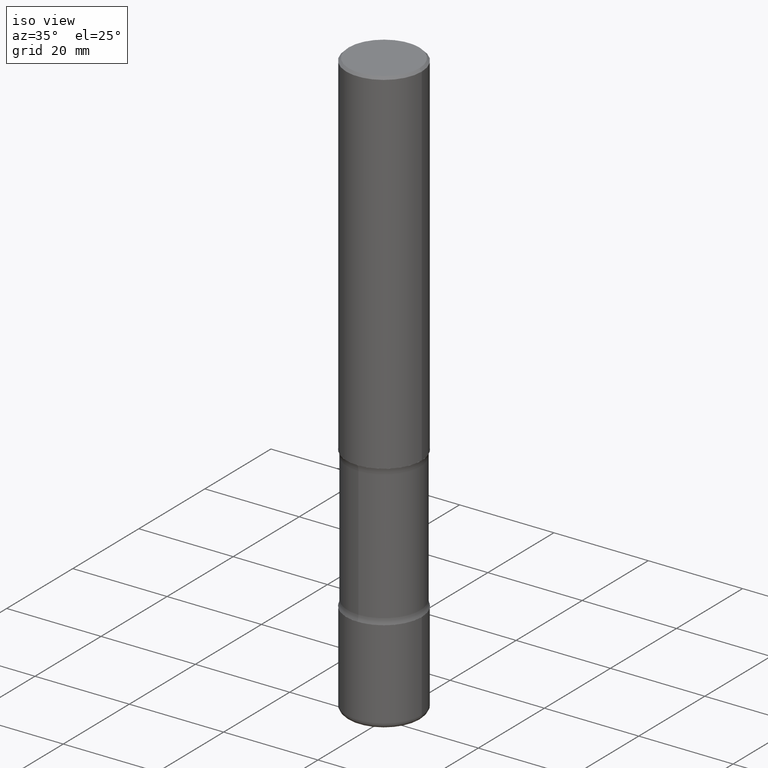
[diagram: clean part render]
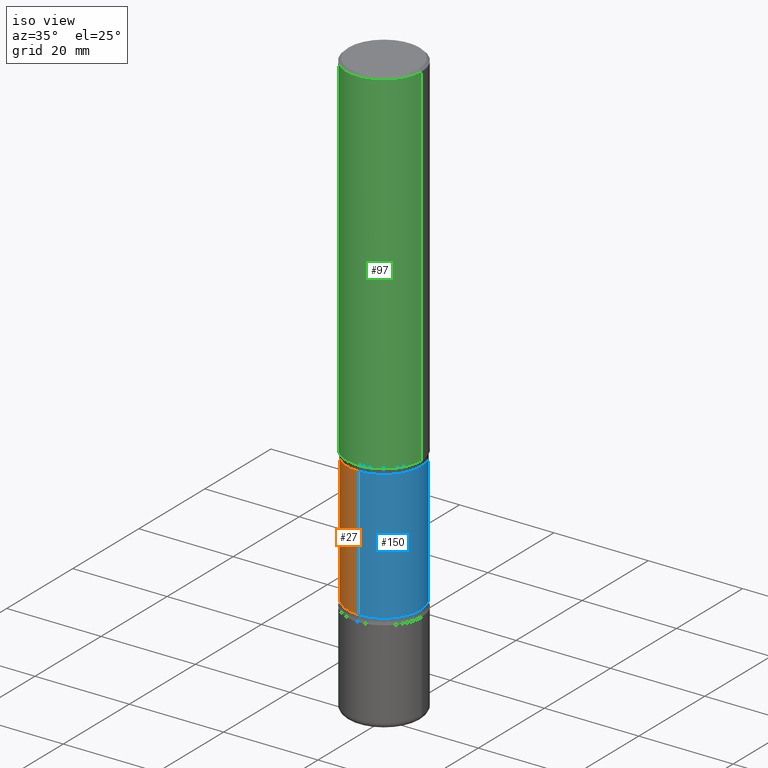
[diagram: same view with three faces highlighted in distinct colors, each labeled with its STEP entity id]
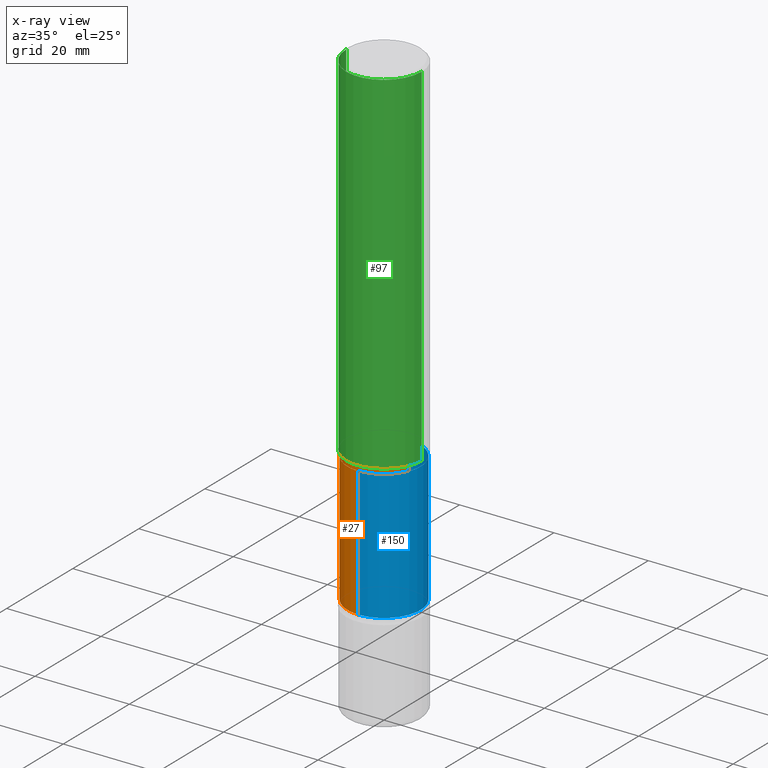
[diagram: x-ray of the same camera — body ghosted, the three highlighted faces saturated]
A machine part, iso view with three faces highlighted in distinct colors.
The next image is the same camera in x-ray (body ghosted, the three faces saturated) — at least one of them is partly hidden behind the body in this view.
Their STEP definitions:

[orange] entity #27 — the highlighted cylindrical surface (partial cylindrical patch) has radius 7.747 mm, axis along (0, -0, -1).
#4 = DIRECTION ( 'NONE',  ( 2.567425907890858451E-29, -3.316831827833398617E-15, -1.000000000000000000 ) ) ;
#12 = VECTOR ( 'NONE', #4, 39.37007874015748143 ) ;
#27 = ADVANCED_FACE ( 'NONE', ( #306 ), #174, .T. ) ;
#32 = VERTEX_POINT ( 'NONE', #482 ) ;
#38 = CIRCLE ( 'NONE', #392, 0.3049999999999999933 ) ;
#44 = CARTESIAN_POINT ( 'NONE',  ( 2.129803616694432752E-15, 0.3049999999999830069, -4.921299999999999564 ) ) ;
#96 = DIRECTION ( 'NONE',  ( 2.567425907890858451E-29, -3.316831827833398617E-15, -1.000000000000000000 ) ) ;
#111 = AXIS2_PLACEMENT_3D ( 'NONE', #540, #326, #152 ) ;
#123 = EDGE_LOOP ( 'NONE', ( #503, #546, #126, #293 ) ) ;
#126 = ORIENTED_EDGE ( 'NONE', *, *, #127, .T. ) ;
#127 = EDGE_CURVE ( 'NONE', #469, #246, #435, .T. ) ;
#133 = AXIS2_PLACEMENT_3D ( 'NONE', #391, #96, #526 ) ;
#145 = CARTESIAN_POINT ( 'NONE',  ( 2.129803616694383843E-15, 0.3049999999999893907, -3.001672256956274598 ) ) ;
#152 = DIRECTION ( 'NONE',  ( 6.982962677686265133E-15, 1.000000000000000000, -3.582751467100671728E-15 ) ) ;
#167 = EDGE_CURVE ( 'NONE', #32, #246, #38, .T. ) ;
#174 = CYLINDRICAL_SURFACE ( 'NONE', #133, 0.3050000000000000488 ) ;
#195 = CARTESIAN_POINT ( 'NONE',  ( -2.092451889320195532E-15, -0.3050000000000170908, -4.921299999999997787 ) ) ;
#246 = VERTEX_POINT ( 'NONE', #499 ) ;
#273 = DIRECTION ( 'NONE',  ( 6.982962677686266711E-15, 1.000000000000000000, -3.582751467100673306E-15 ) ) ;
#275 = CIRCLE ( 'NONE', #111, 0.3050000000000001044 ) ;
#293 = ORIENTED_EDGE ( 'NONE', *, *, #167, .F. ) ;
#306 = FACE_OUTER_BOUND ( 'NONE', #123, .T. ) ;
#318 = LINE ( 'NONE', #195, #345 ) ;
#319 = VERTEX_POINT ( 'NONE', #440 ) ;
#326 = DIRECTION ( 'NONE',  ( 2.567425907890858451E-29, -3.316831827833398617E-15, -1.000000000000000000 ) ) ;
#345 = VECTOR ( 'NONE', #411, 39.37007874015748143 ) ;
#391 = CARTESIAN_POINT ( 'NONE',  ( 1.213091465776199422E-28, -1.704510808787969270E-14, -4.921299999999998676 ) ) ;
#392 = AXIS2_PLACEMENT_3D ( 'NONE', #489, #530, #273 ) ;
#411 = DIRECTION ( 'NONE',  ( 2.567425907890858451E-29, -3.316831827833398617E-15, -1.000000000000000000 ) ) ;
#435 = LINE ( 'NONE', #44, #12 ) ;
#440 = CARTESIAN_POINT ( 'NONE',  ( -2.126582866859160770E-15, -0.3050000000000108180, -3.001672256956272378 ) ) ;
#456 = EDGE_CURVE ( 'NONE', #319, #469, #275, .T. ) ;
#469 = VERTEX_POINT ( 'NONE', #145 ) ;
#482 = CARTESIAN_POINT ( 'NONE',  ( -2.126582866859130004E-15, -0.3050000000000142597, -4.085027743043725401 ) ) ;
#489 = CARTESIAN_POINT ( 'NONE',  ( 9.983847599202101310E-29, -1.427133364927305841E-14, -4.085027743043726289 ) ) ;
#499 = CARTESIAN_POINT ( 'NONE',  ( 2.129803616694410664E-15, 0.3049999999999857270, -4.085027743043728066 ) ) ;
#503 = ORIENTED_EDGE ( 'NONE', *, *, #513, .F. ) ;
#513 = EDGE_CURVE ( 'NONE', #319, #32, #318, .T. ) ;
#526 = DIRECTION ( 'NONE',  ( 6.982962677686265133E-15, 1.000000000000000000, -3.582751467100672517E-15 ) ) ;
#530 = DIRECTION ( 'NONE',  ( 2.567425907890858451E-29, -3.316831827833398617E-15, -1.000000000000000000 ) ) ;
#540 = CARTESIAN_POINT ( 'NONE',  ( 7.202412656765479231E-29, -1.067802569216027239E-14, -3.001672256956273710 ) ) ;
#546 = ORIENTED_EDGE ( 'NONE', *, *, #456, .T. ) ;

[blue] entity #150 — the highlighted cylindrical surface (partial cylindrical patch) has radius 7.747 mm, axis along (0, -0, -1).
#4 = DIRECTION ( 'NONE',  ( 2.567425907890858451E-29, -3.316831827833398617E-15, -1.000000000000000000 ) ) ;
#7 = EDGE_CURVE ( 'NONE', #246, #32, #523, .T. ) ;
#10 = DIRECTION ( 'NONE',  ( 6.982962677686266711E-15, 1.000000000000000000, -3.582751467100673306E-15 ) ) ;
#12 = VECTOR ( 'NONE', #4, 39.37007874015748143 ) ;
#13 = CARTESIAN_POINT ( 'NONE',  ( 1.213091465776199422E-28, -1.704510808787969270E-14, -4.921299999999998676 ) ) ;
#31 = FACE_OUTER_BOUND ( 'NONE', #420, .T. ) ;
#32 = VERTEX_POINT ( 'NONE', #482 ) ;
#34 = DIRECTION ( 'NONE',  ( 6.982962677686265133E-15, 1.000000000000000000, -3.582751467100672517E-15 ) ) ;
#44 = CARTESIAN_POINT ( 'NONE',  ( 2.129803616694432752E-15, 0.3049999999999830069, -4.921299999999999564 ) ) ;
#46 = AXIS2_PLACEMENT_3D ( 'NONE', #197, #448, #102 ) ;
#48 = CARTESIAN_POINT ( 'NONE',  ( 9.983847599202101310E-29, -1.427133364927305841E-14, -4.085027743043726289 ) ) ;
#102 = DIRECTION ( 'NONE',  ( 6.982962677686265133E-15, 1.000000000000000000, -3.582751467100671728E-15 ) ) ;
#127 = EDGE_CURVE ( 'NONE', #469, #246, #435, .T. ) ;
#145 = CARTESIAN_POINT ( 'NONE',  ( 2.129803616694383843E-15, 0.3049999999999893907, -3.001672256956274598 ) ) ;
#150 = ADVANCED_FACE ( 'NONE', ( #31 ), #313, .T. ) ;
#151 = ORIENTED_EDGE ( 'NONE', *, *, #253, .T. ) ;
#195 = CARTESIAN_POINT ( 'NONE',  ( -2.092451889320195532E-15, -0.3050000000000170908, -4.921299999999997787 ) ) ;
#197 = CARTESIAN_POINT ( 'NONE',  ( 7.202412656765479231E-29, -1.067802569216027239E-14, -3.001672256956273710 ) ) ;
#217 = DIRECTION ( 'NONE',  ( 2.567425907890858451E-29, -3.316831827833398617E-15, -1.000000000000000000 ) ) ;
#246 = VERTEX_POINT ( 'NONE', #499 ) ;
#253 = EDGE_CURVE ( 'NONE', #469, #319, #400, .T. ) ;
#300 = ORIENTED_EDGE ( 'NONE', *, *, #127, .F. ) ;
#313 = CYLINDRICAL_SURFACE ( 'NONE', #325, 0.3050000000000000488 ) ;
#318 = LINE ( 'NONE', #195, #345 ) ;
#319 = VERTEX_POINT ( 'NONE', #440 ) ;
#325 = AXIS2_PLACEMENT_3D ( 'NONE', #13, #414, #34 ) ;
#345 = VECTOR ( 'NONE', #411, 39.37007874015748143 ) ;
#400 = CIRCLE ( 'NONE', #46, 0.3050000000000001044 ) ;
#407 = ORIENTED_EDGE ( 'NONE', *, *, #513, .T. ) ;
#411 = DIRECTION ( 'NONE',  ( 2.567425907890858451E-29, -3.316831827833398617E-15, -1.000000000000000000 ) ) ;
#414 = DIRECTION ( 'NONE',  ( 2.567425907890858451E-29, -3.316831827833398617E-15, -1.000000000000000000 ) ) ;
#420 = EDGE_LOOP ( 'NONE', ( #151, #407, #518, #300 ) ) ;
#435 = LINE ( 'NONE', #44, #12 ) ;
#440 = CARTESIAN_POINT ( 'NONE',  ( -2.126582866859160770E-15, -0.3050000000000108180, -3.001672256956272378 ) ) ;
#448 = DIRECTION ( 'NONE',  ( 2.567425907890858451E-29, -3.316831827833398617E-15, -1.000000000000000000 ) ) ;
#469 = VERTEX_POINT ( 'NONE', #145 ) ;
#482 = CARTESIAN_POINT ( 'NONE',  ( -2.126582866859130004E-15, -0.3050000000000142597, -4.085027743043725401 ) ) ;
#493 = AXIS2_PLACEMENT_3D ( 'NONE', #48, #217, #10 ) ;
#499 = CARTESIAN_POINT ( 'NONE',  ( 2.129803616694410664E-15, 0.3049999999999857270, -4.085027743043728066 ) ) ;
#513 = EDGE_CURVE ( 'NONE', #319, #32, #318, .T. ) ;
#518 = ORIENTED_EDGE ( 'NONE', *, *, #7, .F. ) ;
#523 = CIRCLE ( 'NONE', #493, 0.3049999999999999933 ) ;

[green] entity #97 — the highlighted cylindrical surface (partial cylindrical patch) has radius 7.9997 mm, axis along (-0, 0, 1).
#37 = ORIENTED_EDGE ( 'NONE', *, *, #308, .T. ) ;
#52 = DIRECTION ( 'NONE',  ( -2.445468806185136597E-29, 3.491481338843145583E-15, 1.000000000000000000 ) ) ;
#55 = CIRCLE ( 'NONE', #60, 0.3149500000000002298 ) ;
#60 = AXIS2_PLACEMENT_3D ( 'NONE', #447, #405, #186 ) ;
#70 = DIRECTION ( 'NONE',  ( -2.445468806185136877E-29, 3.491481338843145188E-15, 1.000000000000000000 ) ) ;
#73 = CARTESIAN_POINT ( 'NONE',  ( -0.3149500000000000077, 2.237854346276435590E-15, -1.549218606675782676E-29 ) ) ;
#77 = CARTESIAN_POINT ( 'NONE',  ( -0.3149499999999998967, 2.129454468560425784E-15, -0.02000000000000006981 ) ) ;
#84 = EDGE_CURVE ( 'NONE', #379, #109, #541, .T. ) ;
#92 = DIRECTION ( 'NONE',  ( -2.445468806185136597E-29, 3.491481338843145583E-15, 1.000000000000000000 ) ) ;
#97 = ADVANCED_FACE ( 'NONE', ( #140 ), #524, .T. ) ;
#109 = VERTEX_POINT ( 'NONE', #352 ) ;
#121 = VECTOR ( 'NONE', #207, 39.37007874015748143 ) ;
#130 = AXIS2_PLACEMENT_3D ( 'NONE', #303, #52, #264 ) ;
#140 = FACE_OUTER_BOUND ( 'NONE', #555, .T. ) ;
#163 = CARTESIAN_POINT ( 'NONE',  ( 0.3149500000000000077, -2.199284095337289871E-15, 1.535751875536930130E-29 ) ) ;
#186 = DIRECTION ( 'NONE',  ( 1.000000000000000000, -6.982962677686264344E-15, 0.000000000000000000 ) ) ;
#200 = ORIENTED_EDGE ( 'NONE', *, *, #255, .T. ) ;
#201 = VECTOR ( 'NONE', #70, 39.37007874015748143 ) ;
#203 = LINE ( 'NONE', #163, #121 ) ;
#207 = DIRECTION ( 'NONE',  ( -2.445468806185136877E-29, 3.491481338843145188E-15, 1.000000000000000000 ) ) ;
#208 = ORIENTED_EDGE ( 'NONE', *, *, #84, .F. ) ;
#255 = EDGE_CURVE ( 'NONE', #549, #109, #203, .T. ) ;
#258 = AXIS2_PLACEMENT_3D ( 'NONE', #259, #92, #442 ) ;
#259 = CARTESIAN_POINT ( 'NONE',  ( 4.890937612370289799E-31, -6.982962677686315028E-17, -0.02000000000000006981 ) ) ;
#264 = DIRECTION ( 'NONE',  ( 1.000000000000000000, -6.982962677686266711E-15, 4.876176775795936353E-29 ) ) ;
#303 = CARTESIAN_POINT ( 'NONE',  ( 0.000000000000000000, 0.000000000000000000, 0.000000000000000000 ) ) ;
#308 = EDGE_CURVE ( 'NONE', #373, #549, #55, .T. ) ;
#309 = ORIENTED_EDGE ( 'NONE', *, *, #363, .F. ) ;
#328 = CARTESIAN_POINT ( 'NONE',  ( -0.3149500000000002298, -2.951883515780010590E-15, -2.952799999999999869 ) ) ;
#352 = CARTESIAN_POINT ( 'NONE',  ( 0.3149499999999998967, -2.230543471175006266E-15, -0.02000000000000006981 ) ) ;
#363 = EDGE_CURVE ( 'NONE', #373, #379, #505, .T. ) ;
#373 = VERTEX_POINT ( 'NONE', #328 ) ;
#379 = VERTEX_POINT ( 'NONE', #77 ) ;
#405 = DIRECTION ( 'NONE',  ( -2.445468806185136597E-29, 3.491481338843145583E-15, 1.000000000000000000 ) ) ;
#442 = DIRECTION ( 'NONE',  ( 1.000000000000000000, -6.982962677686265922E-15, 0.000000000000000000 ) ) ;
#447 = CARTESIAN_POINT ( 'NONE',  ( 7.220980290903470182E-29, -1.030964609733603853E-14, -2.952799999999999869 ) ) ;
#505 = LINE ( 'NONE', #73, #201 ) ;
#524 = CYLINDRICAL_SURFACE ( 'NONE', #130, 0.3149500000000000077 ) ;
#533 = CARTESIAN_POINT ( 'NONE',  ( 0.3149500000000002298, -1.250893019267332998E-14, -2.952799999999999869 ) ) ;
#541 = CIRCLE ( 'NONE', #258, 0.3149499999999998967 ) ;
#549 = VERTEX_POINT ( 'NONE', #533 ) ;
#555 = EDGE_LOOP ( 'NONE', ( #309, #37, #200, #208 ) ) ;